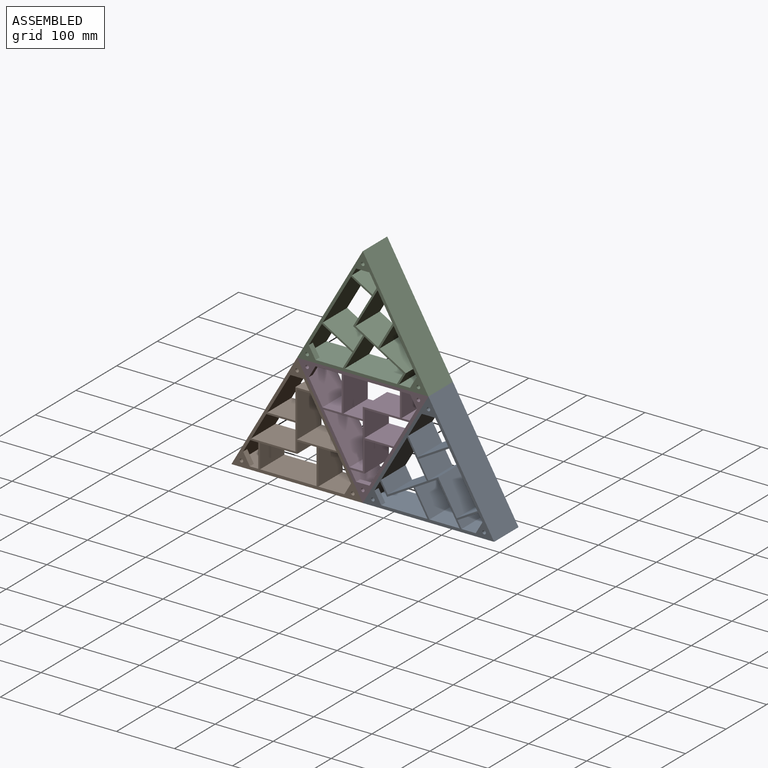
[diagram: assembled view]
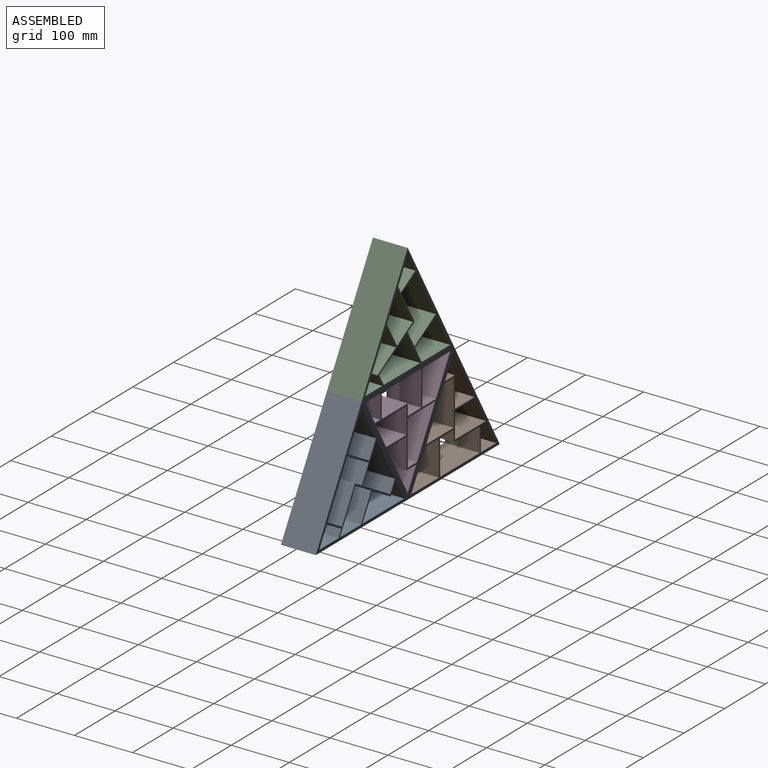
[diagram: assembled view, second angle]
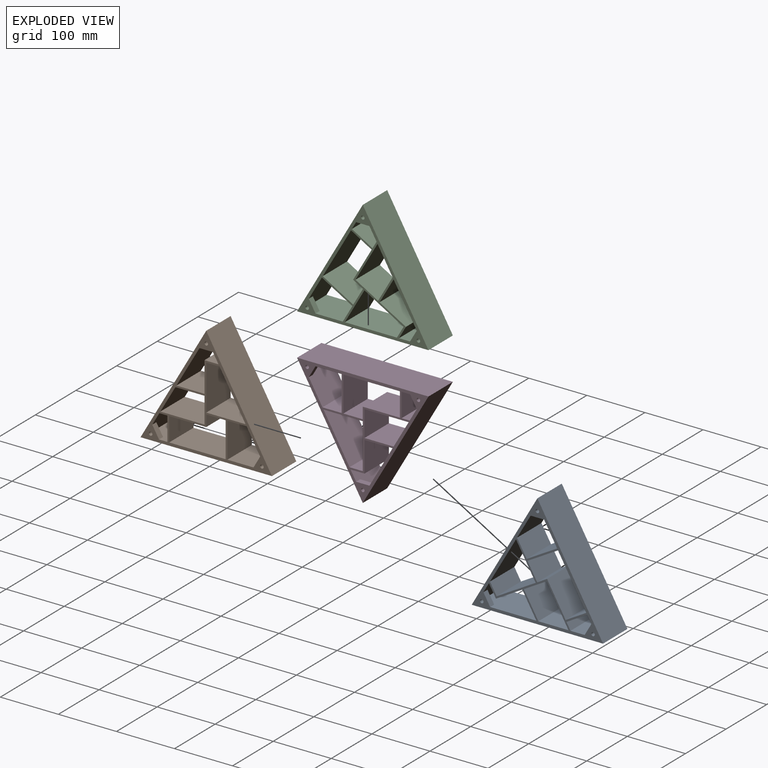
[diagram: exploded view]
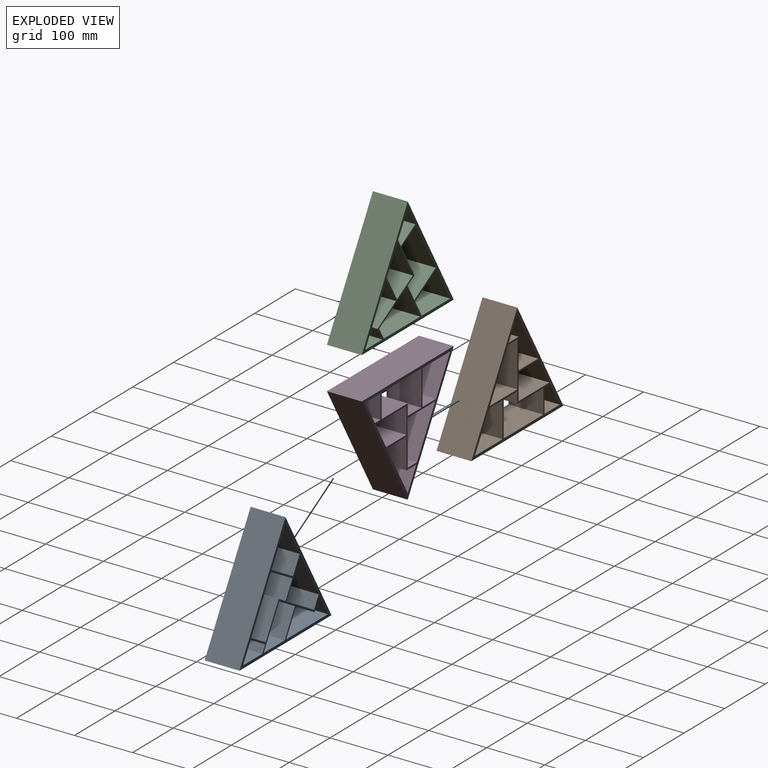
[diagram: exploded view, second angle]
ASSEMBLY  parts=4 mates=3
PART A: 41 faces, bbox 226.3x60x196 mm
  f0: plane 68.03x60mm, normal (0,0,1), area 3851mm2, adj f3,f6,f7,f27,f34,f35
  f1: plane 97.37x60mm, normal (0,0,1), area 5842.4mm2, adj f6,f7,f26,f31
  f2: plane 60x36.56mm, normal (-0.87,0,-0.5), area 2301.8mm2, adj f4,f6,f7,f17,f32,f33
  f3: plane 60.67x60mm, normal (-0.87,0,-0.5), area 3972.4mm2, adj f0,f6,f7,f23,f34,f35
  f4: plane 89x60mm, normal (0.87,0,-0.5), area 5935.2mm2, adj f2,f6,f7,f21,f32,f33
  f5: plane 60x41.1mm, normal (0.87,0,-0.5), area 2616.4mm2, adj f6,f7,f8,f29,f36,f37
  f6: plane 226.32x196mm, normal (0,-1,0), area 5137.2mm2, adj f0,f1,f2,f3,f4,f5,f8,f9
  f7: plane 226.32x196mm, normal (0,1,0), area 4530.5mm2, adj f0,f1,f2,f3,f4,f5,f8,f9
  f8: plane 60x37.6mm, normal (0,0,1), area 2024.8mm2, adj f5,f6,f7,f30,f36,f37
  f9: plane 77.77x60mm, normal (-0.87,0,-0.5), area 5388.3mm2, adj f6,f7,f22,f24
  f10: plane 60x44.9mm, normal (0.87,0,-0.5), area 3110.9mm2, adj f6,f7,f20,f28
  f11: plane 226.32x60mm, normal (0,0,-1), area 13579.3mm2, adj f6,f7,f12,f13
  f12: plane 196x113.16mm, normal (0.87,0,0.5), area 13579.3mm2, adj f6,f7,f11,f13
  f13: plane 196x113.16mm, normal (-0.87,0,0.5), area 13579.3mm2, adj f6,f7,f11,f12
  f14: plane 77.77x60mm, normal (1,0,0), area 4666.4mm2, adj f6,f7,f22,f24
  f15: plane 60x52.44mm, normal (-1,0,0), area 3146.6mm2, adj f6,f7,f17,f21
  f16: plane 63.9x60mm, normal (0,0,-1), area 3834.3mm2, adj f6,f7,f19,f31
  f17: plane 60x24.11mm, normal (0,0,1), area 1446.4mm2, adj f2,f6,f7,f15
  f18: plane 60x44.9mm, normal (-1,0,0), area 2694.1mm2, adj f6,f7,f20,f28
  f19: plane 60x19.57mm, normal (1,0,0), area 1174.3mm2, adj f6,f7,f16,f25
  f20: plane 60x50.12mm, normal (0,0,-1), area 3007mm2, adj f6,f7,f10,f18
  f21: plane 60x48.38mm, normal (0,0,1), area 2903.1mm2, adj f4,f6,f7,f15
  f22: plane 60x22.84mm, normal (0,0,-1), area 1370.3mm2, adj f6,f7,f9,f14
  f23: plane 60x33mm, normal (0,0,-1), area 1980.3mm2, adj f3,f6,f7,f27
  f24: plane 67.74x60mm, normal (0,0,1), area 4064.4mm2, adj f6,f7,f9,f14
  f25: plane 60x33.47mm, normal (0,0,-1), area 2008.1mm2, adj f6,f7,f19,f26
  f26: plane 60.67x60mm, normal (-1,0,0), area 3640.2mm2, adj f1,f6,f7,f25
  f27: plane 60.67x60mm, normal (1,0,0), area 3640.2mm2, adj f0,f6,f7,f23
  f28: plane 76.04x60mm, normal (0,0,1), area 4562.4mm2, adj f6,f7,f10,f18
  f29: plane 60x13.87mm, normal (0,0,-1), area 832.1mm2, adj f5,f6,f7,f30
  f30: plane 60x41.1mm, normal (-1,0,0), area 2465.9mm2, adj f6,f7,f8,f29
  f31: plane 60x41.1mm, normal (1,0,0), area 2465.9mm2, adj f1,f6,f7,f16
  f32: plane 23.09x10mm, normal (0,0,-1), area 230.9mm2, adj f2,f4,f6,f33
  f33: plane 23.09x20mm, normal (0,1,0), area 202.2mm2, adj f2,f4,f32,f40
  f34: plane 20x11.55mm, normal (-0.87,0,0.5), area 230.9mm2, adj f0,f3,f6,f35
  f35: plane 23.09x20mm, normal (0,1,0), area 202.2mm2, adj f0,f3,f34,f39
  f36: plane 20x11.55mm, normal (0.87,0,0.5), area 230.9mm2, adj f5,f6,f8,f37
  f37: plane 23.09x20mm, normal (0,1,0), area 202.2mm2, adj f5,f8,f36,f38
  f38: cylinder r=3.02mm len=10mm, axis (0,-1,0), area 189.9mm2, adj f6,f37
  f39: cylinder r=3.02mm len=10mm, axis (0,-1,0), area 189.9mm2, adj f6,f35
  f40: cylinder r=3.02mm len=10mm, axis (0,-1,0), area 189.9mm2, adj f6,f33
PART B: same geometry as A
PART C: same geometry as A
PART D: same geometry as A
PLACE A rot(axis=(0,-1,0),120deg) t=(159.57,-121.93,17.41)mm
PLACE B t=(-121.6,-121.93,-77.59)mm fixed
PLACE C rot(axis=(0,1,0),120deg) t=(-63.28,-121.93,213.41)mm
PLACE D rot(axis=(0,1,0),180deg) t=(-8.44,-121.93,114.41)mm
MATE fastened D.f12 <-> B.f12  axis (-0.87,0,-0.5) through (-65.02,-151.93,18.41)mm
MATE fastened D.f13 <-> A.f12  axis (0.87,0,-0.5) through (48.14,-151.93,18.41)mm
MATE fastened D.f11 <-> C.f12  axis (0,0,1) through (-8.44,-151.93,116.41)mm
